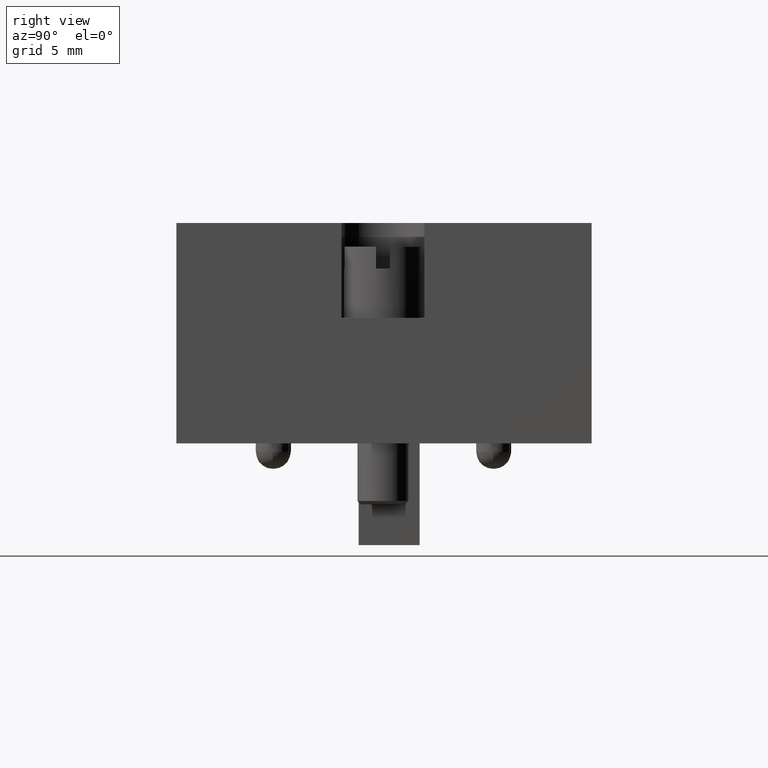
[diagram: clean part render]
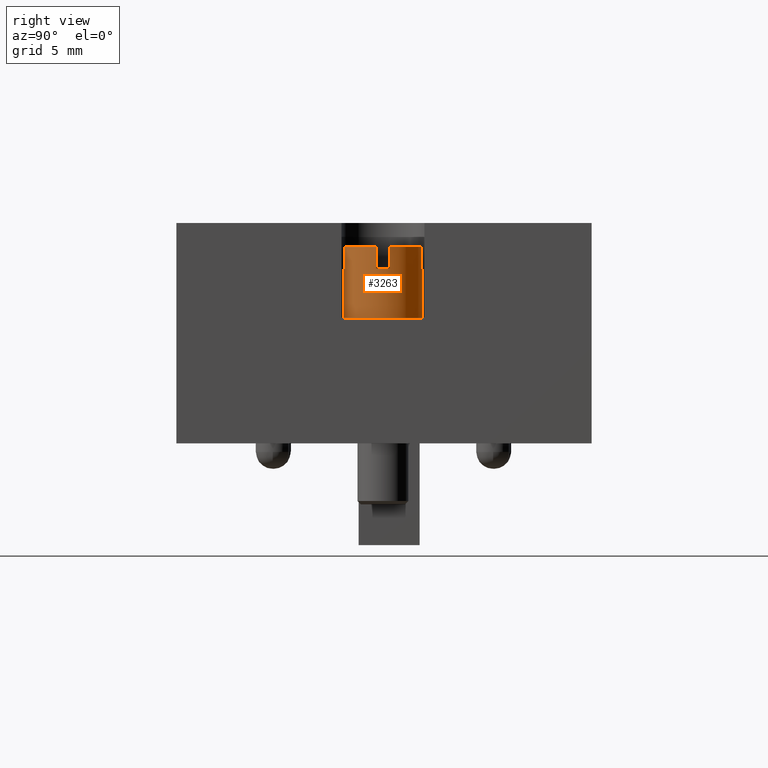
[diagram: same view with one face highlighted and labeled with its STEP entity id]
A machine part, right view. The second image highlights one B-rep face of the part: STEP entity #3263.
In plain terms, the highlighted cylindrical surface (bore or boss wall) has radius 2.3 mm, axis along (0, -0, -1).
Its self-contained STEP definition (entity closure, byte-faithful):
#2678=CARTESIAN_POINT('',(-17.119705858606210,2.075416228556184,2.264950330581225));
#2679=VERTEX_POINT('',#2678);
#2680=CARTESIAN_POINT('',(-18.419705858606211,2.075416228556184,2.264950330581224));
#2681=VERTEX_POINT('',#2680);
#2682=CARTESIAN_POINT('',(-17.119705858606210,2.075416228556184,2.264950330581225));
#2683=DIRECTION('',(-1.0,0.0,0.0));
#2684=VECTOR('',#2683,1.300000000000001);
#2685=LINE('',#2682,#2684);
#2686=EDGE_CURVE('',#2679,#2681,#2685,.T.);
#2718=CARTESIAN_POINT('',(-17.119705858606210,2.875416228556185,-2.264950330581225));
#2719=VERTEX_POINT('',#2718);
#2720=CARTESIAN_POINT('',(-18.419705858606211,2.875416228556185,-2.264950330581224));
#2721=VERTEX_POINT('',#2720);
#2722=CARTESIAN_POINT('',(-17.119705858606210,2.875416228556185,-2.264950330581225));
#2723=DIRECTION('',(-1.0,0.0,0.0));
#2724=VECTOR('',#2723,1.300000000000001);
#2725=LINE('',#2722,#2724);
#2726=EDGE_CURVE('',#2719,#2721,#2725,.T.);
#2768=CARTESIAN_POINT('',(-17.119705858606210,4.740366559137409,-0.400000000000000));
#2769=VERTEX_POINT('',#2768);
#2776=CARTESIAN_POINT('',(-18.419705858606211,4.740366559137409,-0.400000000000000));
#2777=VERTEX_POINT('',#2776);
#2778=CARTESIAN_POINT('',(-18.419705858606211,4.740366559137409,-0.400000000000000));
#2779=DIRECTION('',(1.0,0.0,0.0));
#2780=VECTOR('',#2779,1.300000000000001);
#2781=LINE('',#2778,#2780);
#2782=EDGE_CURVE('',#2777,#2769,#2781,.T.);
#2809=CARTESIAN_POINT('',(-17.119705858606210,0.210465897974959,-0.400000000000000));
#2810=VERTEX_POINT('',#2809);
#2817=CARTESIAN_POINT('',(-17.119705858606210,0.210465897974959,0.400000000000000));
#2818=VERTEX_POINT('',#2817);
#2819=CARTESIAN_POINT('',(-17.119705858606210,2.475416228556184,0.0));
#2820=DIRECTION('',(1.0,0.0,0.0));
#2821=DIRECTION('',(0.0,1.0,0.0));
#2822=AXIS2_PLACEMENT_3D('',#2819,#2820,#2821);
#2823=CIRCLE('',#2822,2.300000000000000);
#2824=EDGE_CURVE('',#2818,#2810,#2823,.T.);
#2849=CARTESIAN_POINT('',(-17.119705858606210,4.740366559137409,0.400000000000000));
#2850=VERTEX_POINT('',#2849);
#2857=CARTESIAN_POINT('',(-17.119705858606210,2.475416228556184,0.0));
#2858=DIRECTION('',(1.0,0.0,0.0));
#2859=DIRECTION('',(0.0,1.0,0.0));
#2860=AXIS2_PLACEMENT_3D('',#2857,#2858,#2859);
#2861=CIRCLE('',#2860,2.300000000000000);
#2862=EDGE_CURVE('',#2769,#2850,#2861,.T.);
#2873=CARTESIAN_POINT('',(-17.119705858606210,2.075416228556184,-2.264950330581225));
#2874=VERTEX_POINT('',#2873);
#2875=CARTESIAN_POINT('',(-17.119705858606210,2.475416228556184,0.0));
#2876=DIRECTION('',(1.0,0.0,0.0));
#2877=DIRECTION('',(0.0,1.0,0.0));
#2878=AXIS2_PLACEMENT_3D('',#2875,#2876,#2877);
#2879=CIRCLE('',#2878,2.300000000000000);
#2880=EDGE_CURVE('',#2874,#2719,#2879,.T.);
#2915=CARTESIAN_POINT('',(-18.419705858606211,0.210465897974959,0.400000000000000));
#2916=VERTEX_POINT('',#2915);
#2917=CARTESIAN_POINT('',(-18.419705858606211,0.210465897974959,0.400000000000000));
#2918=DIRECTION('',(1.0,0.0,0.0));
#2919=VECTOR('',#2918,1.300000000000001);
#2920=LINE('',#2917,#2919);
#2921=EDGE_CURVE('',#2916,#2818,#2920,.T.);
#2937=CARTESIAN_POINT('',(-18.419705858606211,2.075416228556184,-2.264950330581224));
#2938=VERTEX_POINT('',#2937);
#2939=CARTESIAN_POINT('',(-18.419705858606211,2.075416228556184,-2.264950330581224));
#2940=DIRECTION('',(1.0,0.0,0.0));
#2941=VECTOR('',#2940,1.300000000000001);
#2942=LINE('',#2939,#2941);
#2943=EDGE_CURVE('',#2938,#2874,#2942,.T.);
#2968=CARTESIAN_POINT('',(-18.419705858606211,2.875416228556185,2.264950330581224));
#2969=VERTEX_POINT('',#2968);
#2970=CARTESIAN_POINT('',(-17.119705858606210,2.875416228556185,2.264950330581225));
#2971=VERTEX_POINT('',#2970);
#2972=CARTESIAN_POINT('',(-18.419705858606211,2.875416228556185,2.264950330581224));
#2973=DIRECTION('',(1.0,0.0,0.0));
#2974=VECTOR('',#2973,1.300000000000001);
#2975=LINE('',#2972,#2974);
#2976=EDGE_CURVE('',#2969,#2971,#2975,.T.);
#3016=CARTESIAN_POINT('',(-18.419705858606211,4.740366559137409,0.400000000000000));
#3017=VERTEX_POINT('',#3016);
#3024=CARTESIAN_POINT('',(-17.119705858606210,4.740366559137409,0.400000000000000));
#3025=DIRECTION('',(-1.0,0.0,0.0));
#3026=VECTOR('',#3025,1.300000000000001);
#3027=LINE('',#3024,#3026);
#3028=EDGE_CURVE('',#2850,#3017,#3027,.T.);
#3047=CARTESIAN_POINT('',(-18.419705858606211,0.210465897974959,-0.400000000000000));
#3048=VERTEX_POINT('',#3047);
#3055=CARTESIAN_POINT('',(-17.119705858606210,0.210465897974959,-0.400000000000000));
#3056=DIRECTION('',(-1.0,0.0,0.0));
#3057=VECTOR('',#3056,1.300000000000001);
#3058=LINE('',#3055,#3057);
#3059=EDGE_CURVE('',#2810,#3048,#3058,.T.);
#3070=CARTESIAN_POINT('',(-17.119705858606210,2.475416228556184,0.0));
#3071=DIRECTION('',(1.0,0.0,0.0));
#3072=DIRECTION('',(0.0,1.0,0.0));
#3073=AXIS2_PLACEMENT_3D('',#3070,#3071,#3072);
#3074=CIRCLE('',#3073,2.300000000000000);
#3075=EDGE_CURVE('',#2971,#2679,#3074,.T.);
#3156=CARTESIAN_POINT('',(-18.419705858606211,2.475416228556184,0.0));
#3157=DIRECTION('',(1.0,0.0,0.0));
#3158=DIRECTION('',(0.0,1.0,0.0));
#3159=AXIS2_PLACEMENT_3D('',#3156,#3157,#3158);
#3160=CIRCLE('',#3159,2.300000000000000);
#3161=EDGE_CURVE('',#2721,#2777,#3160,.T.);
#3172=CARTESIAN_POINT('',(-18.419705858606211,2.475416228556184,0.0));
#3173=DIRECTION('',(1.0,0.0,0.0));
#3174=DIRECTION('',(0.0,1.0,0.0));
#3175=AXIS2_PLACEMENT_3D('',#3172,#3173,#3174);
#3176=CIRCLE('',#3175,2.300000000000000);
#3177=EDGE_CURVE('',#3048,#2938,#3176,.T.);
#3190=CARTESIAN_POINT('',(-18.419705858606211,2.475416228556184,0.0));
#3191=DIRECTION('',(1.0,0.0,0.0));
#3192=DIRECTION('',(0.0,1.0,0.0));
#3193=AXIS2_PLACEMENT_3D('',#3190,#3191,#3192);
#3194=CIRCLE('',#3193,2.300000000000000);
#3195=EDGE_CURVE('',#3017,#2969,#3194,.T.);
#3210=CARTESIAN_POINT('',(-18.419705858606211,2.475416228556184,0.0));
#3211=DIRECTION('',(1.0,0.0,0.0));
#3212=DIRECTION('',(0.0,1.0,0.0));
#3213=AXIS2_PLACEMENT_3D('',#3210,#3211,#3212);
#3214=CIRCLE('',#3213,2.300000000000000);
#3215=EDGE_CURVE('',#2681,#2916,#3214,.T.);
#3229=CARTESIAN_POINT('',(-16.319705858606209,2.475416228556184,0.0));
#3230=DIRECTION('',(1.0,0.0,0.0));
#3231=DIRECTION('',(0.0,1.0,0.0));
#3232=AXIS2_PLACEMENT_3D('',#3229,#3230,#3231);
#3233=CYLINDRICAL_SURFACE('',#3232,2.300000000000000);
#3234=ORIENTED_EDGE('',*,*,#2686,.T.);
#3235=ORIENTED_EDGE('',*,*,#3215,.T.);
#3236=ORIENTED_EDGE('',*,*,#2921,.T.);
#3237=ORIENTED_EDGE('',*,*,#2824,.T.);
#3238=ORIENTED_EDGE('',*,*,#3059,.T.);
#3239=ORIENTED_EDGE('',*,*,#3177,.T.);
#3240=ORIENTED_EDGE('',*,*,#2943,.T.);
#3241=ORIENTED_EDGE('',*,*,#2880,.T.);
#3242=ORIENTED_EDGE('',*,*,#2726,.T.);
#3243=ORIENTED_EDGE('',*,*,#3161,.T.);
#3244=ORIENTED_EDGE('',*,*,#2782,.T.);
#3245=ORIENTED_EDGE('',*,*,#2862,.T.);
#3246=ORIENTED_EDGE('',*,*,#3028,.T.);
#3247=ORIENTED_EDGE('',*,*,#3195,.T.);
#3248=ORIENTED_EDGE('',*,*,#2976,.T.);
#3249=ORIENTED_EDGE('',*,*,#3075,.T.);
#3250=EDGE_LOOP('',(#3234,#3235,#3236,#3237,#3238,#3239,#3240,#3241,#3242,#3243,#3244,#3245,#3246,#3247,#3248,#3249));
#3251=FACE_OUTER_BOUND('',#3250,.T.);
#3252=CARTESIAN_POINT('',(-14.219705858606208,4.775416228556185,0.0));
#3253=VERTEX_POINT('',#3252);
#3254=CARTESIAN_POINT('',(-14.219705858606208,2.475416228556184,0.0));
#3255=DIRECTION('',(1.0,0.0,0.0));
#3256=DIRECTION('',(0.0,1.0,0.0));
#3257=AXIS2_PLACEMENT_3D('',#3254,#3255,#3256);
#3258=CIRCLE('',#3257,2.300000000000001);
#3259=EDGE_CURVE('',#3253,#3253,#3258,.T.);
#3260=ORIENTED_EDGE('',*,*,#3259,.F.);
#3261=EDGE_LOOP('',(#3260));
#3262=FACE_BOUND('',#3261,.T.);
#3263=ADVANCED_FACE('',(#3251,#3262),#3233,.T.);